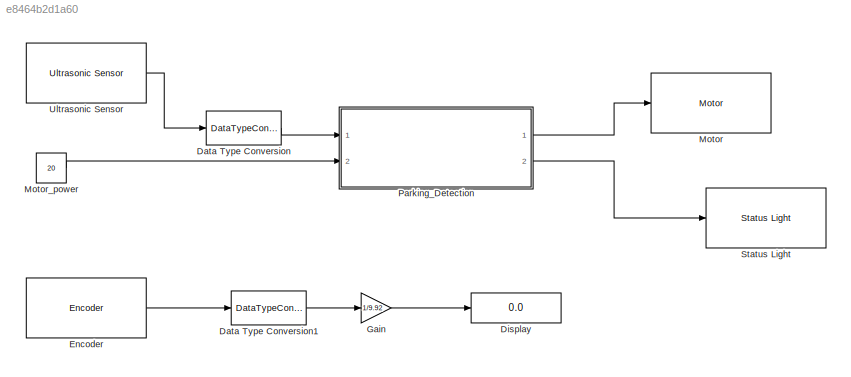
MODEL slx_e8464b2d1a60
KIND model
CONFIG AbsTol = auto
CONFIG FixedStep = auto
CONFIG MaxStep = auto
CONFIG MinStep = auto
CONFIG RelTol = 1e-3
CONFIG SampleTimeConstraint = Unconstrained
CONFIG Solver = ode45
CONFIG SolverMode = Auto
CONFIG SolverName = ode45
CONFIG StartTime = 0.0
CONFIG StopTime = inf
BLOCK [DataTypeConversion] Data Type Conversion
  RndMeth = Floor
  SaturateOnIntegerOverflow = off
BLOCK [DataTypeConversion] Data Type Conversion1
  RndMeth = Floor
  SaturateOnIntegerOverflow = off
BLOCK [Display] Display
  Decimation = 1
  Ports = [1]
BLOCK [Reference] Encoder  REF=legoev3lib/Encoder
  Ports = [0, 1]
  SourceBlock = legoev3lib/Encoder
  SourceType = LEGO MINDSTORMS EV3 Encoder
  opMode = No reset
  portNumber = A
  sampleTime = 0.1
BLOCK [Gain] Gain
  Gain = 1/9.92
  OutDataTypeStr = Inherit: Inherit via internal rule
  ParamDataTypeStr = Inherit: Inherit via internal rule
  SaturateOnIntegerOverflow = off
BLOCK [Reference] Motor  REF=legoev3lib/Motor
  Ports = [1]
  SourceBlock = legoev3lib/Motor
  SourceType = LEGO MINDSTORMS EV3 Motor
  sportNumber = A
  sstopAction = Brake
BLOCK [Constant] Motor_power
  Value = 20
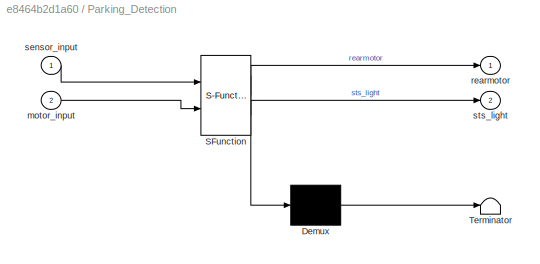
BLOCK [SubSystem] Parking_Detection
  ErrorFcn = Stateflow.Translate.translate
  PermitHierarchicalResolution = ExplicitOnly
  Ports = [2, 2]
  RequestExecContextInheritance = off
  SFBlockType = MATLAB Function
  TreatAsAtomicUnit = on
BLOCK [Demux] Parking_Detection/ Demux 
  Outputs = 1
  Ports = [1, 1]
BLOCK [S-Function] Parking_Detection/ SFunction 
  EnableBusSupport = on
  FunctionName = sf_sfun
  PortCounts = [2 3]
  Ports = [2, 3]
  Tag = Stateflow S-Function testbench_state2 2
BLOCK [Terminator] Parking_Detection/ Terminator 
BLOCK [Inport] Parking_Detection/motor_input
  IconDisplay = Port number
  Port = 2
BLOCK [Outport] Parking_Detection/rearmotor
  IconDisplay = Port number
BLOCK [Inport] Parking_Detection/sensor_input
  IconDisplay = Port number
BLOCK [Outport] Parking_Detection/sts_light
  IconDisplay = Port number
  Port = 2
BLOCK [Reference] Status Light  REF=legoev3lib/Status Light
  Ports = [1]
  SourceBlock = legoev3lib/Status Light
  SourceType = LEGO MINDSTORMS EV3 Status Light
BLOCK [Reference] Ultrasonic Sensor  REF=legoev3lib/Ultrasonic Sensor
  PortNumber = 1
  Ports = [0, 1]
  SourceBlock = legoev3lib/Ultrasonic Sensor
  SourceType = LEGO MINDSTORMS EV3 Ultrasonic Sensor
  sampleTime = 0.1
LINE Data Type Conversion1:1 -> Gain:1
LINE Data Type Conversion:1 -> Parking_Detection:1
LINE Encoder:1 -> Data Type Conversion1:1
LINE Gain:1 -> Display:1
LINE Motor_power:1 -> Parking_Detection:2
LINE Parking_Detection:1 -> Motor:1
LINE Parking_Detection:2 -> Status Light:1
LINE Ultrasonic Sensor:1 -> Data Type Conversion:1
CHART Parking_Detection states=1 transitions=1
  STATE_LABEL 'eML_blk_kernel()'
  STATE_LABEL 'SCRIPT:\nfunction [rearmotor,sts_light] = fcn(sensor_input,motor_input)\n%#codegen\nif(sensor_input>24)&&(sensor_input<=40)\n   rearmotor=motor_input;\n   sts_light=1;\nelse\n   rearmotor=motor_input;\n   sts_light=2;\nend\nend\n'
